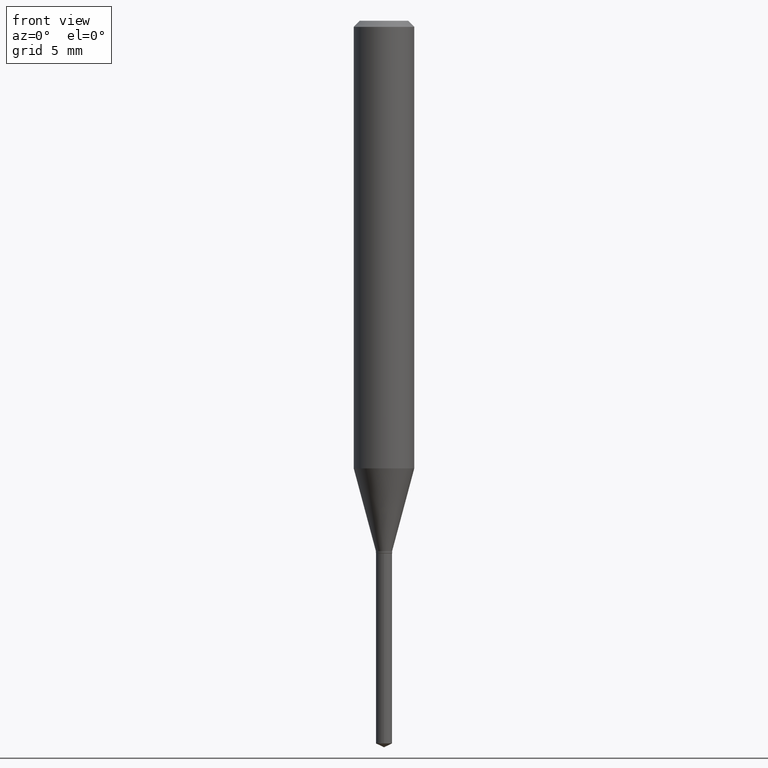
[diagram: clean part render]
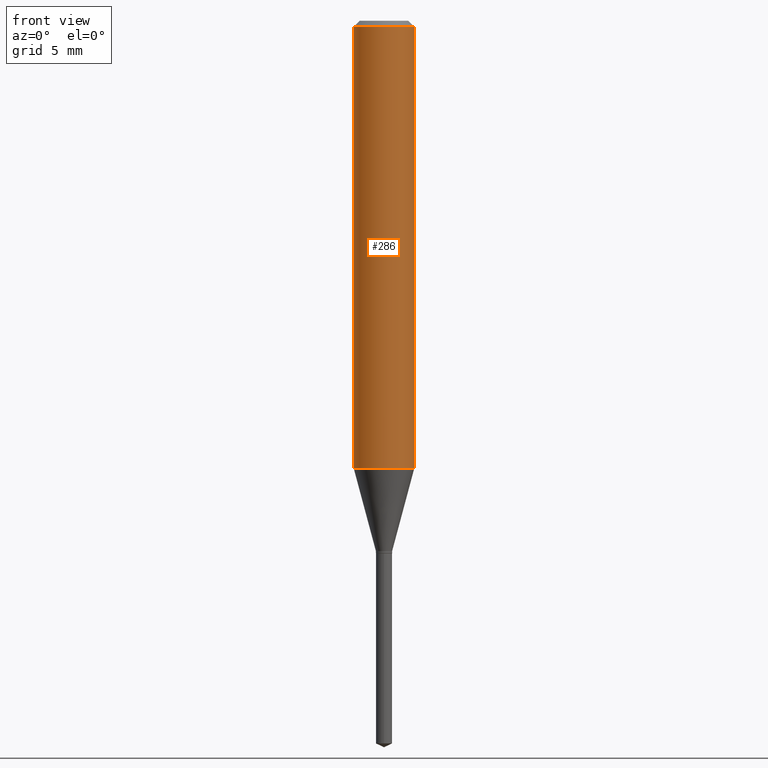
[diagram: same view with one face highlighted and labeled with its STEP entity id]
A machine part, front view. The second image highlights one B-rep face of the part: STEP entity #286.
In plain terms, the highlighted cylindrical surface (edge-blend (fillet) strip) has radius 1.5875 mm, axis along (-0, 0, 1).
Its self-contained STEP definition (entity closure, byte-faithful):
#29 = FACE_OUTER_BOUND ( 'NONE', #480, .T. ) ;
#44 = CARTESIAN_POINT ( 'NONE',  ( -0.06250000000000005551, 4.440892098500630106E-16, -3.074334431409318916E-30 ) ) ;
#48 = VERTEX_POINT ( 'NONE', #58 ) ;
#58 = CARTESIAN_POINT ( 'NONE',  ( -0.06250000000000012490, -2.782942708109644843E-15, -0.9242586755537238741 ) ) ;
#65 = DIRECTION ( 'NONE',  ( 1.000000000000000000, -6.982962677686264344E-15, 0.000000000000000000 ) ) ;
#70 = EDGE_CURVE ( 'NONE', #113, #376, #140, .T. ) ;
#73 = CYLINDRICAL_SURFACE ( 'NONE', #148, 0.06250000000000005551 ) ;
#98 = DIRECTION ( 'NONE',  ( -2.445468806185136597E-29, 3.491481338843145583E-15, 1.000000000000000000 ) ) ;
#106 = ORIENTED_EDGE ( 'NONE', *, *, #70, .T. ) ;
#110 = DIRECTION ( 'NONE',  ( -2.445468806185136597E-29, 3.491481338843145583E-15, 1.000000000000000000 ) ) ;
#112 = CARTESIAN_POINT ( 'NONE',  ( 3.056836007731440977E-31, -4.364351673553961068E-17, -0.01250000000000008223 ) ) ;
#113 = VERTEX_POINT ( 'NONE', #327 ) ;
#125 = CIRCLE ( 'NONE', #197, 0.06250000000000012490 ) ;
#140 = LINE ( 'NONE', #209, #349 ) ;
#148 = AXIS2_PLACEMENT_3D ( 'NONE', #183, #368, #333 ) ;
#183 = CARTESIAN_POINT ( 'NONE',  ( 0.000000000000000000, 0.000000000000000000, 0.000000000000000000 ) ) ;
#197 = AXIS2_PLACEMENT_3D ( 'NONE', #345, #110, #65 ) ;
#201 = CARTESIAN_POINT ( 'NONE',  ( 0.06250000000000000000, -4.800786840909312308E-16, -0.01250000000000008223 ) ) ;
#209 = CARTESIAN_POINT ( 'NONE',  ( 0.06250000000000005551, -4.364351673553921131E-16, 3.047610484872463023E-30 ) ) ;
#220 = VERTEX_POINT ( 'NONE', #331 ) ;
#247 = DIRECTION ( 'NONE',  ( 1.000000000000000000, -6.982962677686266711E-15, 0.000000000000000000 ) ) ;
#256 = EDGE_CURVE ( 'NONE', #48, #113, #125, .T. ) ;
#257 = CIRCLE ( 'NONE', #341, 0.06250000000000000000 ) ;
#286 = ADVANCED_FACE ( 'NONE', ( #29 ), #73, .T. ) ;
#295 = ORIENTED_EDGE ( 'NONE', *, *, #356, .F. ) ;
#315 = DIRECTION ( 'NONE',  ( -2.445468806185136877E-29, 3.491481338843145188E-15, 1.000000000000000000 ) ) ;
#327 = CARTESIAN_POINT ( 'NONE',  ( 0.06250000000000012490, -3.663467085315100312E-15, -0.9242586755537238741 ) ) ;
#331 = CARTESIAN_POINT ( 'NONE',  ( -0.06250000000000000000, -1.191248507497560105E-15, -0.01250000000000008223 ) ) ;
#333 = DIRECTION ( 'NONE',  ( 1.000000000000000000, -6.982962677686267499E-15, 4.876176775795936353E-29 ) ) ;
#337 = EDGE_CURVE ( 'NONE', #220, #376, #257, .T. ) ;
#341 = AXIS2_PLACEMENT_3D ( 'NONE', #112, #98, #247 ) ;
#344 = ORIENTED_EDGE ( 'NONE', *, *, #337, .F. ) ;
#345 = CARTESIAN_POINT ( 'NONE',  ( 2.260245759912620669E-29, -3.227031917959708248E-15, -0.9242586755537238741 ) ) ;
#349 = VECTOR ( 'NONE', #396, 39.37007874015748143 ) ;
#353 = LINE ( 'NONE', #44, #391 ) ;
#356 = EDGE_CURVE ( 'NONE', #48, #220, #353, .T. ) ;
#368 = DIRECTION ( 'NONE',  ( -2.445468806185136597E-29, 3.491481338843145583E-15, 1.000000000000000000 ) ) ;
#376 = VERTEX_POINT ( 'NONE', #201 ) ;
#388 = ORIENTED_EDGE ( 'NONE', *, *, #256, .T. ) ;
#391 = VECTOR ( 'NONE', #315, 39.37007874015748143 ) ;
#396 = DIRECTION ( 'NONE',  ( -2.445468806185136877E-29, 3.491481338843145188E-15, 1.000000000000000000 ) ) ;
#480 = EDGE_LOOP ( 'NONE', ( #295, #388, #106, #344 ) ) ;